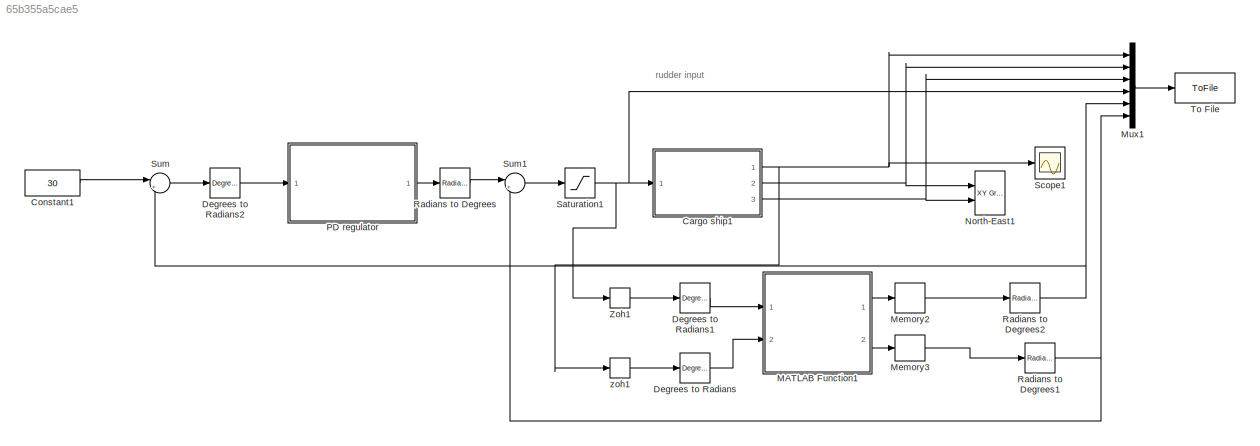
MODEL slx_65b355a5cae5
KIND model
CONFIG AbsTol = auto
CONFIG EnableMultiTasking = on
CONFIG FixedStep = auto
CONFIG MaxStep = auto
CONFIG MinStep = auto
CONFIG RelTol = 1e-3
CONFIG SampleTimeConstraint = Unconstrained
CONFIG Solver = ode45
CONFIG SolverName = ode45
CONFIG StartTime = 0.0
CONFIG StopTime = 800
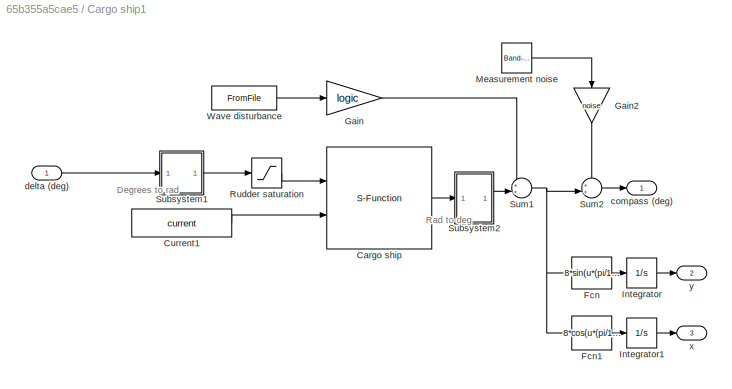
BLOCK [SubSystem] Cargo ship1
  Ports = [1, 3]
  RequestExecContextInheritance = off
  Variant = off
BLOCK [S-Function] Cargo ship1/Cargo ship
  EnableBusSupport = off
  FunctionName = Cargoship
  Ports = [2, 1]
  SFcnIsStateOwnerBlock = off
  SFunctionDeploymentMode = off
BLOCK [Constant] Cargo ship1/Current1
  Value = current
BLOCK [Fcn] Cargo ship1/Fcn
  Expr = 8*sin(u*(pi/180))
BLOCK [Fcn] Cargo ship1/Fcn1
  Expr = 8*cos(u*(pi/180))
BLOCK [Gain] Cargo ship1/Gain
  Gain = logic
BLOCK [Gain] Cargo ship1/Gain2
  Gain = noise
BLOCK [Integrator] Cargo ship1/Integrator
  Ports = [1, 1]
BLOCK [Integrator] Cargo ship1/Integrator1
  Ports = [1, 1]
BLOCK [Reference] Cargo ship1/Measurement noise  REF=simulink/Sources/Band-Limited
White Noise
  Ports = [0, 1]
  SourceBlock = simulink/Sources/Band-Limited\nWhite Noise
  SourceProductBaseCode = SL
  SourceProductName = Simulink
  SourceType = Band-Limited White Noise.
BLOCK [Saturate] Cargo ship1/Rudder saturation
  InputPortMap = u0
  LowerLimit = -45*(pi/180)
  Ports = [1, 1]
  UpperLimit = 45*(pi/180)
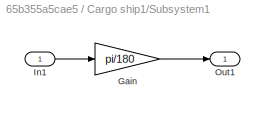
BLOCK [SubSystem] Cargo ship1/Subsystem1
  Ports = [1, 1]
  RequestExecContextInheritance = off
  Variant = off
BLOCK [Gain] Cargo ship1/Subsystem1/Gain
  Gain = pi/180
BLOCK [Inport] Cargo ship1/Subsystem1/In1
  IconDisplay = Port number
BLOCK [Outport] Cargo ship1/Subsystem1/Out1
  IconDisplay = Port number
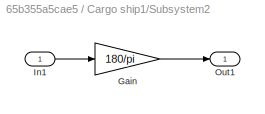
BLOCK [SubSystem] Cargo ship1/Subsystem2
  Ports = [1, 1]
  RequestExecContextInheritance = off
  Variant = off
BLOCK [Gain] Cargo ship1/Subsystem2/Gain
  Gain = 180/pi
BLOCK [Inport] Cargo ship1/Subsystem2/In1
  IconDisplay = Port number
BLOCK [Outport] Cargo ship1/Subsystem2/Out1
  IconDisplay = Port number
BLOCK [Sum] Cargo ship1/Sum1
  IconShape = round
  InputSameDT = off
  Inputs = ++|
  OutDataTypeStr = Inherit: Inherit via internal rule
  Ports = [2, 1]
BLOCK [Sum] Cargo ship1/Sum2
  IconShape = round
  InputSameDT = off
  Inputs = ++|
  OutDataTypeStr = Inherit: Inherit via internal rule
  Ports = [2, 1]
BLOCK [FromFile] Cargo ship1/Wave disturbance
  FileName = wave.mat
  SampleTime = 0
BLOCK [Outport] Cargo ship1/compass (deg)
  IconDisplay = Port number
BLOCK [Inport] Cargo ship1/delta (deg)
  IconDisplay = Port number
BLOCK [Outport] Cargo ship1/x
  IconDisplay = Port number
  Port = 3
BLOCK [Outport] Cargo ship1/y
  IconDisplay = Port number
  Port = 2
BLOCK [Constant] Constant1
  Value = 30
BLOCK [Reference] Degrees to Radians  REF=simulink_extras/Transformations/Degrees to
Radians
  Ports = [1, 1]
  SourceBlock = simulink_extras/Transformations/Degrees to\nRadians
  SourceProductBaseCode = SL
  SourceProductName = Simulink
  SourceType = DegreesToRadians
BLOCK [Reference] Degrees to Radians1  REF=simulink_extras/Transformations/Degrees to
Radians
  Ports = [1, 1]
  SourceBlock = simulink_extras/Transformations/Degrees to\nRadians
  SourceProductBaseCode = SL
  SourceProductName = Simulink
  SourceType = DegreesToRadians
BLOCK [Reference] Degrees to Radians2  REF=simulink_extras/Transformations/Degrees to
Radians
  Ports = [1, 1]
  SourceBlock = simulink_extras/Transformations/Degrees to\nRadians
  SourceProductBaseCode = SL
  SourceProductName = Simulink
  SourceType = DegreesToRadians
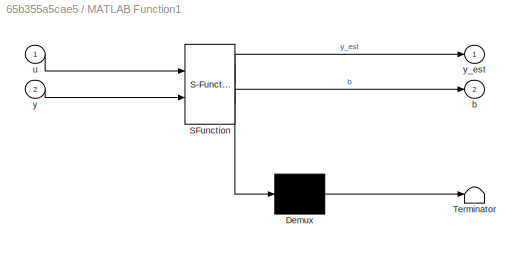
BLOCK [SubSystem] MATLAB Function1
  ErrorFcn = Stateflow.Translate.translate
  PermitHierarchicalResolution = ExplicitOnly
  Ports = [2, 2]
  RequestExecContextInheritance = off
  SFBlockType = MATLAB Function
  TreatAsAtomicUnit = on
  Variant = off
BLOCK [Demux] MATLAB Function1/ Demux 
  Outputs = 1
  Ports = [1, 1]
BLOCK [S-Function] MATLAB Function1/ SFunction 
  EnableBusSupport = on
  FunctionName = sf_sfun
  Parameters = ks
  PortCounts = [2 3]
  Ports = [2, 3]
  SFcnIsStateOwnerBlock = off
  SFunctionDeploymentMode = off
  Tag = Stateflow S-Function p5e 1
BLOCK [Terminator] MATLAB Function1/ Terminator 
BLOCK [Outport] MATLAB Function1/b
  IconDisplay = Port number
  Port = 2
BLOCK [Inport] MATLAB Function1/u
  IconDisplay = Port number
BLOCK [Inport] MATLAB Function1/y
  IconDisplay = Port number
  Port = 2
BLOCK [Outport] MATLAB Function1/y_est
  IconDisplay = Port number
BLOCK [Memory] Memory2
BLOCK [Memory] Memory3
BLOCK [Mux] Mux1
  DisplayOption = bar
  Inputs = 6
  Ports = [6, 1]
BLOCK [Reference] North-East1  REF=simulink/Sinks/XY Graph
  Ports = [2]
  SourceBlock = simulink/Sinks/XY Graph
  SourceProductBaseCode = SL
  SourceProductName = Simulink
  SourceType = XY scope.
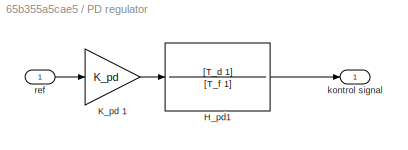
BLOCK [SubSystem] PD regulator 
  Ports = [1, 1]
  RequestExecContextInheritance = off
  Variant = off
BLOCK [TransferFcn] PD regulator /H_pd1
  Denominator = [T_f 1]
  Numerator = [T_d 1]
BLOCK [Gain] PD regulator /K_pd 1
  Gain = K_pd
  OutDataTypeStr = Inherit: Inherit via internal rule
  ParamDataTypeStr = Inherit: Inherit via internal rule
  SaturateOnIntegerOverflow = off
BLOCK [Outport] PD regulator /kontrol signal 
  IconDisplay = Port number
BLOCK [Inport] PD regulator /ref
  IconDisplay = Port number
BLOCK [Reference] Radians to Degrees  REF=simulink_extras/Transformations/Radians
to Degrees
  Ports = [1, 1]
  SourceBlock = simulink_extras/Transformations/Radians\nto Degrees
  SourceProductBaseCode = SL
  SourceProductName = Simulink
  SourceType = RadiansToDegrees
BLOCK [Reference] Radians to Degrees1  REF=simulink_extras/Transformations/Radians
to Degrees
  Ports = [1, 1]
  SourceBlock = simulink_extras/Transformations/Radians\nto Degrees
  SourceProductBaseCode = SL
  SourceProductName = Simulink
  SourceType = RadiansToDegrees
BLOCK [Reference] Radians to Degrees2  REF=simulink_extras/Transformations/Radians
to Degrees
  Ports = [1, 1]
  SourceBlock = simulink_extras/Transformations/Radians\nto Degrees
  SourceProductBaseCode = SL
  SourceProductName = Simulink
  SourceType = RadiansToDegrees
BLOCK [Saturate] Saturation1
  InputPortMap = u0
  LowerLimit = -45
  Ports = [1, 1]
  UpperLimit = 45
BLOCK [Scope] Scope1
  NumInputPorts = 1
  Ports = [1]
  ScopeSpecificationString = Simulink.scopes.TimeScopeBlockCfg('CurrentConfiguration', extmgr.ConfigurationSet(extmgr.Configuration('Core','General UI',true),extmgr.Configuration('Core','Source UI',true),extmgr.Configuration('Sources','WiredSimulink',true,'DataLoggingSaveFormat','StructureWithTime','DataLoggingLimitDataPoints',true,'DataLoggingDecimation','1','DataLoggingDecimateData',true,'DataLoggingVariableName','ScopeData...<+1689ch>
BLOCK [Sum] Sum
  IconShape = round
  InputSameDT = off
  Inputs = |+-
  OutDataTypeStr = Inherit: Inherit via internal rule
  Ports = [2, 1]
  SaturateOnIntegerOverflow = off
BLOCK [Sum] Sum1
  IconShape = round
  InputSameDT = off
  Inputs = |++
  OutDataTypeStr = Inherit: Inherit via internal rule
  Ports = [2, 1]
  SaturateOnIntegerOverflow = off
BLOCK [ToFile] To File
  Filename = dataPDe.mat
  MatrixName = dataPDe
  Ports = [1]
BLOCK [ZeroOrderHold] Zoh1
  SampleTime = Ts
BLOCK [ZeroOrderHold] zoh1
  SampleTime = Ts
ANNOTATION (root): rudder input
ANNOTATION Cargo ship1: Degrees to rad
ANNOTATION Cargo ship1: Rad to deg
LINE Cargo ship1/Cargo ship:1 -> Cargo ship1/Subsystem2:1
LINE Cargo ship1/Current1:1 -> Cargo ship1/Cargo ship:2
LINE Cargo ship1/Fcn1:1 -> Cargo ship1/Integrator1:1
LINE Cargo ship1/Fcn:1 -> Cargo ship1/Integrator:1
LINE Cargo ship1/Gain2:1 -> Cargo ship1/Sum2:1
LINE Cargo ship1/Gain:1 -> Cargo ship1/Sum1:1
LINE Cargo ship1/Integrator1:1 -> Cargo ship1/x:1
LINE Cargo ship1/Integrator:1 -> Cargo ship1/y:1
LINE Cargo ship1/Measurement noise:1 -> Cargo ship1/Gain2:1
LINE Cargo ship1/Rudder saturation:1 -> Cargo ship1/Cargo ship:1
LINE Cargo ship1/Subsystem1/Gain:1 -> Cargo ship1/Subsystem1/Out1:1
LINE Cargo ship1/Subsystem1/In1:1 -> Cargo ship1/Subsystem1/Gain:1
LINE Cargo ship1/Subsystem1:1 -> Cargo ship1/Rudder saturation:1
LINE Cargo ship1/Subsystem2/Gain:1 -> Cargo ship1/Subsystem2/Out1:1
LINE Cargo ship1/Subsystem2/In1:1 -> Cargo ship1/Subsystem2/Gain:1
LINE Cargo ship1/Subsystem2:1 -> Cargo ship1/Sum1:2
NET Cargo ship1/Sum1:1 -> Cargo ship1/Fcn1:1, Cargo ship1/Fcn:1, Cargo ship1/Sum2:2
LINE Cargo ship1/Sum2:1 -> Cargo ship1/compass (deg):1
LINE Cargo ship1/Wave disturbance:1 -> Cargo ship1/Gain:1
LINE Cargo ship1/delta (deg):1 -> Cargo ship1/Subsystem1:1
NET Cargo ship1:1 -> Mux1:1, Scope1:1, zoh1:1
NET Cargo ship1:2 -> Mux1:2, North-East1:1
NET Cargo ship1:3 -> Mux1:3, North-East1:2
LINE Constant1:1 -> Sum:1
LINE Degrees to Radians1:1 -> MATLAB Function1:1
LINE Degrees to Radians2:1 -> PD regulator :1
LINE Degrees to Radians:1 -> MATLAB Function1:2
LINE MATLAB Function1:1 -> Memory2:1
LINE MATLAB Function1:2 -> Memory3:1
LINE Memory2:1 -> Radians to Degrees2:1
LINE Memory3:1 -> Radians to Degrees1:1
LINE Mux1:1 -> To File:1
LINE PD regulator /H_pd1:1 -> PD regulator /kontrol signal :1
LINE PD regulator /K_pd 1:1 -> PD regulator /H_pd1:1
LINE PD regulator /ref:1 -> PD regulator /K_pd 1:1
LINE PD regulator :1 -> Radians to Degrees:1
NET Radians to Degrees1:1 -> Mux1:6, Sum1:2
NET Radians to Degrees2:1 -> Mux1:5, Sum:2
LINE Radians to Degrees:1 -> Sum1:1
NET Saturation1:1 -> Cargo ship1:1, Mux1:4, Zoh1:1
LINE Sum1:1 -> Saturation1:1
LINE Sum:1 -> Degrees to Radians2:1
LINE Zoh1:1 -> Degrees to Radians1:1
LINE zoh1:1 -> Degrees to Radians:1
note: NET lines group one-source signal fan-out (src -> all destinations, sorted); 1:1 wires keep LINE
CHART MATLAB Function1 states=1 transitions=1
  STATE_LABEL 'eML_blk_kernel()'
  STATE_LABEL "SCRIPT:\nfunction [y_est,b] = kalman(u,y,ks)\npersistent init x_pri P_pri Ad Bd C Ed Q I R \n\nif isempty(init)\n    %Initializing constants\n    Ad=ks.Ad;   Bd=ks.Bd;   C=ks.C; Ed=ks.Ed;\n    I=ks.I; R=ks.R; Q=ks.Q; \n    % Initializing first step\n    x_pri = ks.x0_pri;\n    P_pri = ks.P0_pri;\n    % Making sure initializing only once\n    init = 1;\nend\n% Calculating Kalman gain\nK = P_pri*C'*inv(C*P_pri*C'+...<+317ch>"
